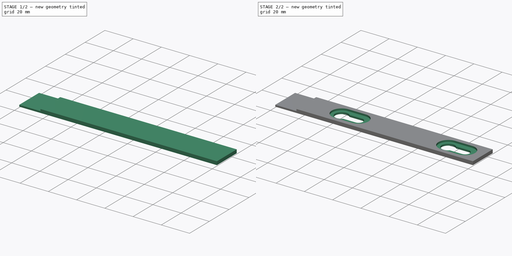
[diagram: build sequence overview — one tinted view per stage of 2, left to right]
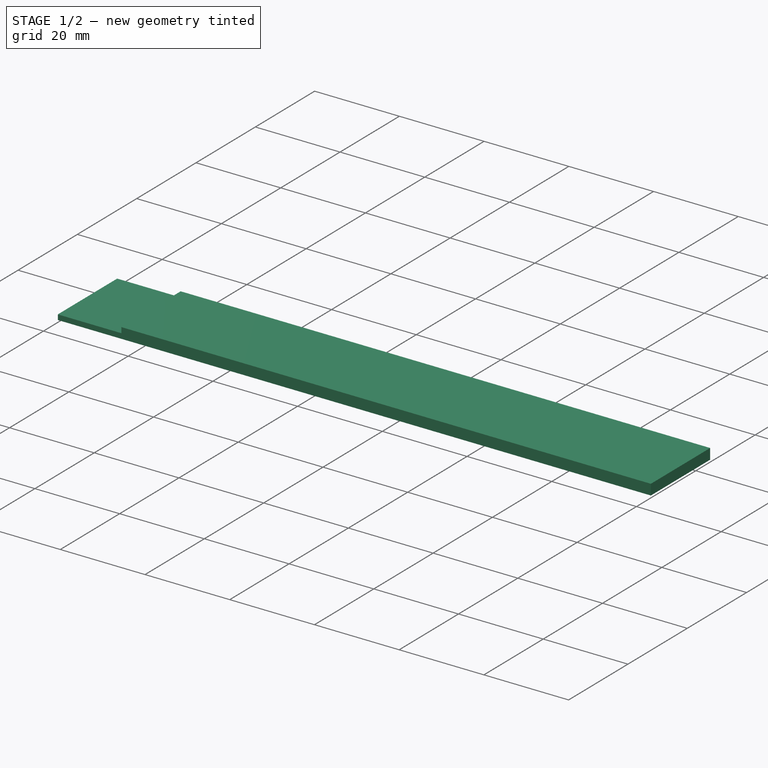
[diagram: stage 1 of 2 — iso view after this stage's code; geometry added in this stage tinted green]
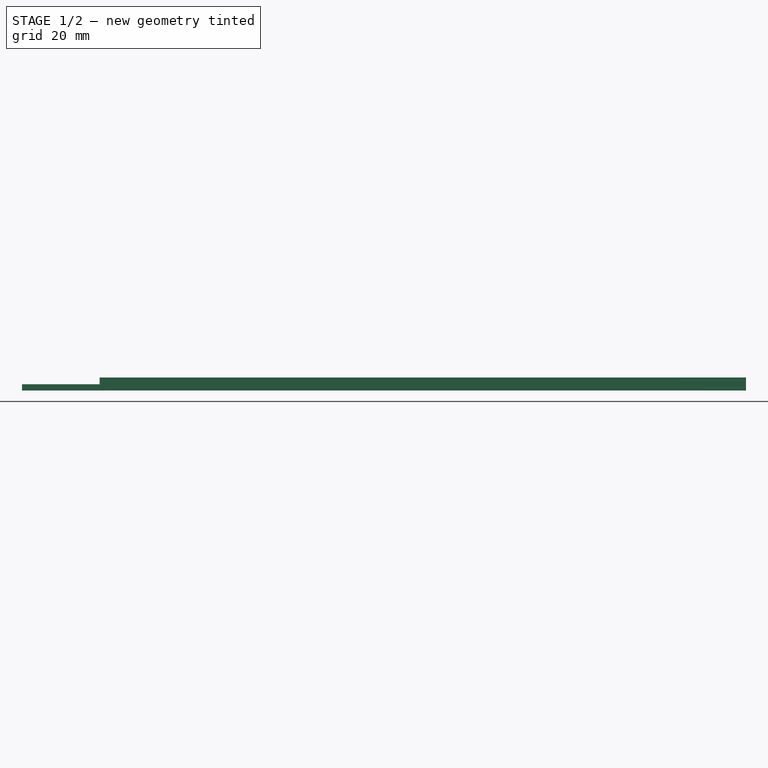
[diagram: stage 1 of 2 — front view after this stage's code; geometry added in this stage tinted green]
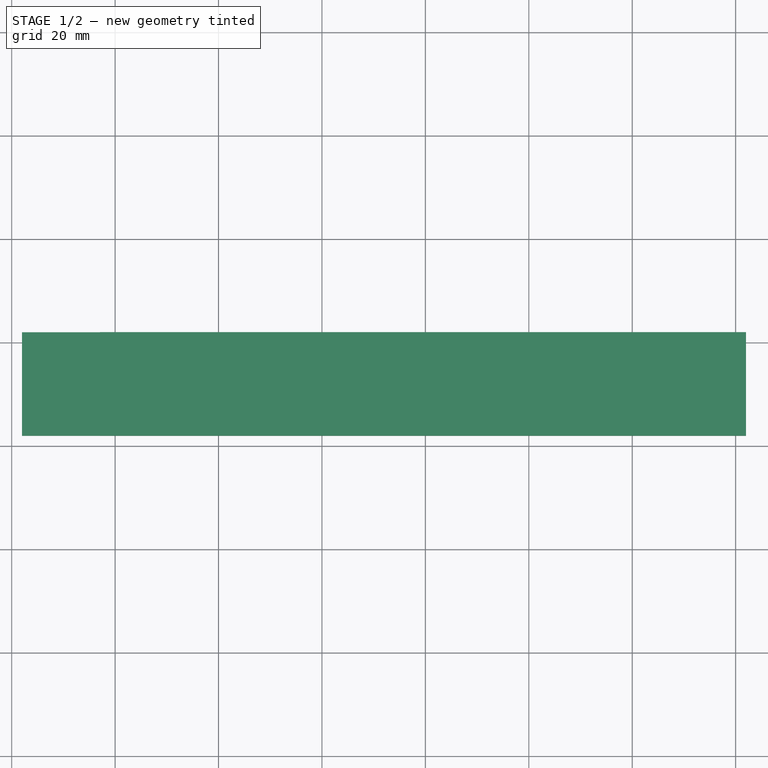
[diagram: stage 1 of 2 — top view after this stage's code; geometry added in this stage tinted green]
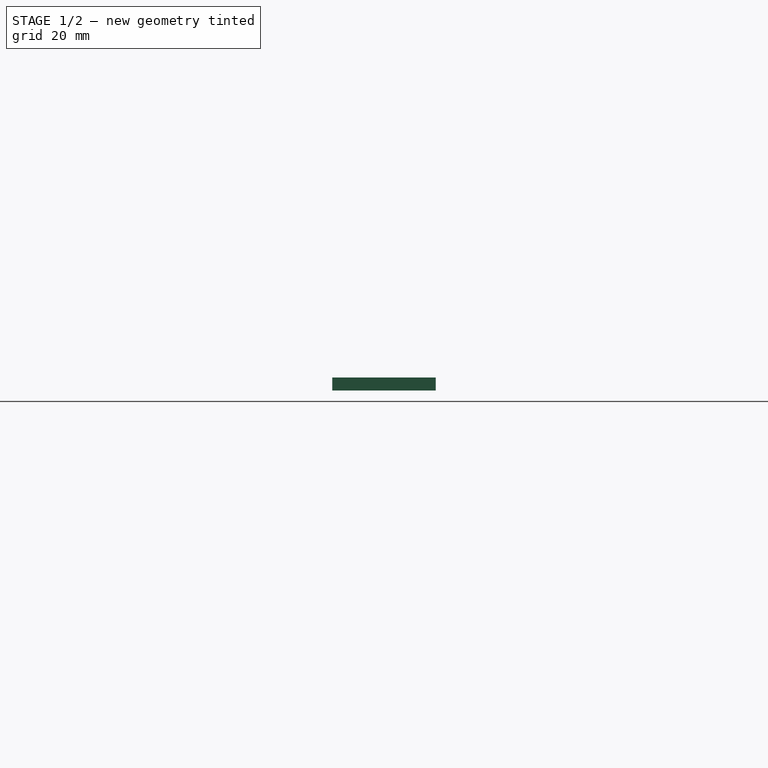
[diagram: stage 1 of 2 — right view after this stage's code; geometry added in this stage tinted green]
FCSTD DOCUMENT  (FreeCAD 0.15R4671 (Git))
Label: heaterBracketLow
License: CC-BY 3.0
LicenseURL: http://creativecommons.org/licenses/by/3.0/
objects: Sketcher::SketchObject×4, PartDesign::Pocket×3, PartDesign::Pad×1
note: 12 computed .brp shape members not serialized (recipe doc carries the construction recipe); baked Part::Feature solids carry a one-line shape summary decoded from their .brp

FEATURE [Sketcher::SketchObject] Sketch  label="Sketch Corps"
  sketch-geometry (4):
    g0: LineSegment StartX=2 StartY=2 StartZ=0 EndX=142 EndY=2 EndZ=0
    g1: LineSegment StartX=142 StartY=2 StartZ=0 EndX=142 EndY=22 EndZ=0
    g2: LineSegment StartX=142 StartY=22 StartZ=0 EndX=2 EndY=22 EndZ=0
    g3: LineSegment StartX=2 StartY=22 StartZ=0 EndX=2 EndY=2 EndZ=0
  constraints (12):
    c: Coincident(g0,g1)
    c: Coincident(g1,g2)
    c: Coincident(g2,g3)
    c: Coincident(g3,g0)
    c: Horizontal(g0)
    c: Horizontal(g2)
    c: Vertical(g1)
    c: Vertical(g3)
    c: DistanceY(g3) = -20
    c: DistanceX(g-1,g0) = 2
    c: DistanceY(g-1,g0) = 2
    c: DistanceX(g0,g0) = 140
FEATURE [PartDesign::Pad] Pad  label="Corps"
  Length = 2.5
  Length2 = 100
  Sketch = -> Sketch
  Type = 0
FEATURE [Sketcher::SketchObject] Sketch001  label="Sketch Jointure"
  Placement = pos=(0,0,2.5) rot=(0,0,1;0rad)
  Support = -> Pad [Face6]
  sketch-geometry (4):
    g0: LineSegment StartX=2 StartY=2 StartZ=0 EndX=17 EndY=2 EndZ=0
    g1: LineSegment StartX=17 StartY=2 StartZ=0 EndX=17 EndY=22 EndZ=0
    g2: LineSegment StartX=17 StartY=22 StartZ=0 EndX=2 EndY=22 EndZ=0
    g3: LineSegment StartX=2 StartY=22 StartZ=0 EndX=2 EndY=2 EndZ=0
  constraints (12):
    c: Coincident(g0,g1)
    c: Coincident(g1,g2)
    c: Coincident(g2,g3)
    c: Coincident(g3,g0)
    c: Horizontal(g0)
    c: Horizontal(g2)
    c: Vertical(g1)
    c: Vertical(g3)
    c: DistanceY(g-1,g0) = 2
    c: DistanceX(g-1,g0) = 2
    c: DistanceY(g0,g2) = 20
    c: Distance(g0) = 15
FEATURE [PartDesign::Pocket] Pocket  label="Pocket Jointure"
  Length = 1.3
  Sketch = -> Sketch001
  Type = 0
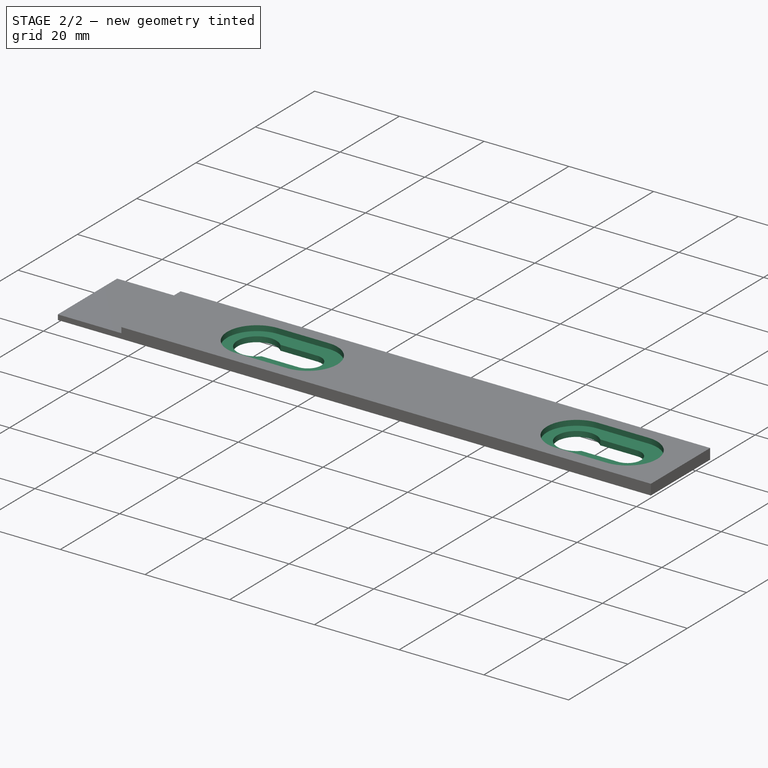
[diagram: stage 2 of 2 — iso view after this stage's code; geometry added in this stage tinted green]
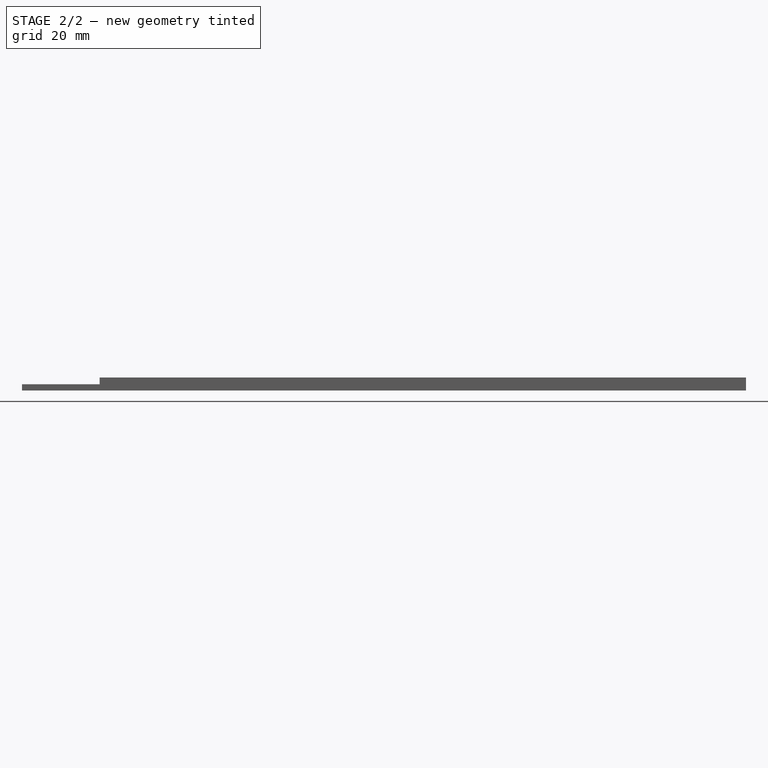
[diagram: stage 2 of 2 — front view after this stage's code; geometry added in this stage tinted green]
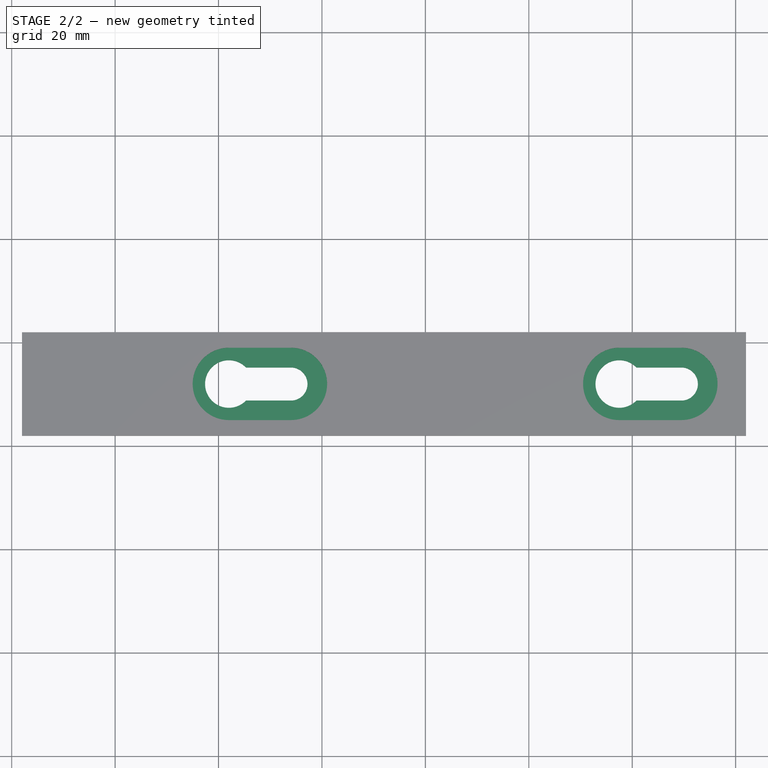
[diagram: stage 2 of 2 — top view after this stage's code; geometry added in this stage tinted green]
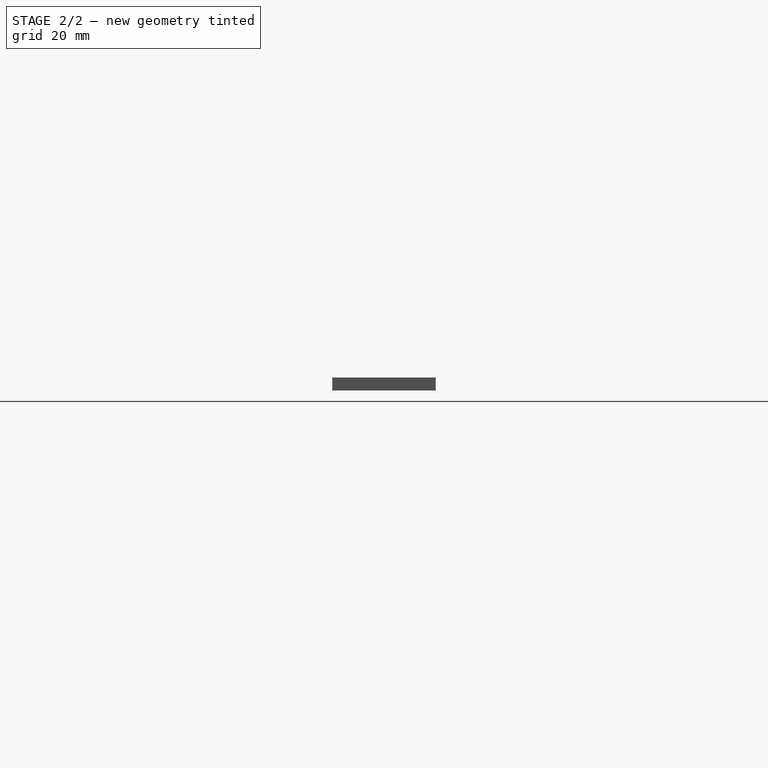
[diagram: stage 2 of 2 — right view after this stage's code; geometry added in this stage tinted green]
FEATURE [Sketcher::SketchObject] Sketch002  label="Sketch renfoncements"
  Placement = pos=(0,0,2.5) rot=(0,0,1;0rad)
  Support = -> Pocket [Face4]
  sketch-geometry (8):
    g0: ArcOfCircle CenterX=42 CenterY=12 CenterZ=0 NormalX=0 NormalY=0 NormalZ=1 Radius=7 StartAngle=1.5708 EndAngle=4.71239
    g1: ArcOfCircle CenterX=54 CenterY=12 CenterZ=0 NormalX=0 NormalY=0 NormalZ=1 Radius=7 StartAngle=4.71239 EndAngle=7.85398
    g2: LineSegment StartX=42 StartY=5 StartZ=0 EndX=54 EndY=5 EndZ=0
    g3: LineSegment StartX=42 StartY=19 StartZ=0 EndX=54 EndY=19 EndZ=0
    g4: ArcOfCircle CenterX=117.5 CenterY=12 CenterZ=0 NormalX=0 NormalY=0 NormalZ=1 Radius=7 StartAngle=1.5708 EndAngle=4.71239
    g5: ArcOfCircle CenterX=129.5 CenterY=12 CenterZ=0 NormalX=0 NormalY=0 NormalZ=1 Radius=7 StartAngle=4.71239 EndAngle=7.85398
    g6: LineSegment StartX=117.5 StartY=5 StartZ=0 EndX=129.5 EndY=5 EndZ=0
    g7: LineSegment StartX=117.5 StartY=19 StartZ=0 EndX=129.5 EndY=19 EndZ=0
  constraints (20):
    c: Tangent(g0,g3) = 1.5708
    c: Tangent(g0,g2) = -1.5708
    c: Tangent(g2,g1) = -1.5708
    c: Tangent(g3,g1) = 1.5708
    c: Horizontal(g2)
    c: Equal(g0,g1)
    c: DistanceY(g-1,g0) = 12
    c: DistanceX(g-1,g0) = 42
    c: Radius(g0) = 7
    c: Tangent(g4,g7) = 1.5708
    c: Tangent(g4,g6) = -1.5708
    c: Tangent(g6,g5) = -1.5708
    c: Tangent(g7,g5) = 1.5708
    c: Horizontal(g6)
    c: Equal(g4,g5)
    c: DistanceY(g0,g5) = 0
    c: Radius(g5) = 7
    c: DistanceX(g0,g4) = 75.5
    c: DistanceX(g0,g1) = 12
    c: DistanceX(g4,g5) = 12
FEATURE [PartDesign::Pocket] Pocket001  label="Pocket Renfoncement"
  Length = 1.25
  Sketch = -> Sketch002
  Type = 0
FEATURE [Sketcher::SketchObject] Sketch003  label="Sketch trous"
  Placement = pos=(0,0,1.25) rot=(0,0,1;0rad)
  Support = -> Pocket001 [Face18]
  sketch-geometry (10):
    g0: Circle CenterX=42 CenterY=12 CenterZ=0 NormalX=0 NormalY=0 NormalZ=1 Radius=4.6
    g1: ArcOfCircle CenterX=54 CenterY=12 CenterZ=0 NormalX=0 NormalY=0 NormalZ=1 Radius=3.2 StartAngle=4.71239 EndAngle=7.85398
    g2: ArcOfCircle CenterX=44 CenterY=12 CenterZ=0 NormalX=0 NormalY=0 NormalZ=1 Radius=3.2 StartAngle=1.5708 EndAngle=4.71239
    g3: LineSegment StartX=54 StartY=15.2 StartZ=0 EndX=44 EndY=15.2 EndZ=0
    g4: LineSegment StartX=54 StartY=8.8 StartZ=0 EndX=44 EndY=8.8 EndZ=0
    g5: Circle CenterX=117.5 CenterY=12 CenterZ=0 NormalX=0 NormalY=0 NormalZ=1 Radius=4.6
    g6: ArcOfCircle CenterX=129.5 CenterY=12 CenterZ=0 NormalX=0 NormalY=0 NormalZ=1 Radius=3.2 StartAngle=4.71239 EndAngle=7.85398
    g7: ArcOfCircle CenterX=119.5 CenterY=12 CenterZ=0 NormalX=0 NormalY=0 NormalZ=1 Radius=3.2 StartAngle=1.5708 EndAngle=4.71239
    g8: LineSegment StartX=129.5 StartY=15.2 StartZ=0 EndX=119.5 EndY=15.2 EndZ=0
    g9: LineSegment StartX=129.5 StartY=8.8 StartZ=0 EndX=119.5 EndY=8.8 EndZ=0
  constraints (26):
    c: Radius(g0) = 4.6
    c: DistanceX(g-1,g0) = 42
    c: Tangent(g1,g4) = 1.5708
    c: Tangent(g1,g3) = -1.5708
    c: Tangent(g3,g2) = -1.5708
    c: Tangent(g4,g2) = 1.5708
    c: Horizontal(g3)
    c: Equal(g1,g2)
    c: DistanceX(g2,g0) = -2
    c: DistanceY(g2,g0) = 0
    c: DistanceY(g-1,g0) = 12
    c: Radius(g1) = 3.2
    c: DistanceX(g2,g1) = 10
    c: DistanceY(g5,g0) = 0
    c: DistanceX(g0,g5) = 75.5
    c: Tangent(g6,g9) = 1.5708
    c: Tangent(g6,g8) = -1.5708
    c: Tangent(g8,g7) = -1.5708
    c: Tangent(g9,g7) = 1.5708
    c: Horizontal(g8)
    c: Equal(g6,g7)
    c: DistanceY(g7,g5) = 0
    c: Equal(g6,g1)
    c: Equal(g5,g0)
    c: DistanceX(g7,g5) = -2
    c: DistanceX(g7,g6) = 10
FEATURE [PartDesign::Pocket] Pocket002
  Length = 5
  Sketch = -> Sketch003
  Type = 1
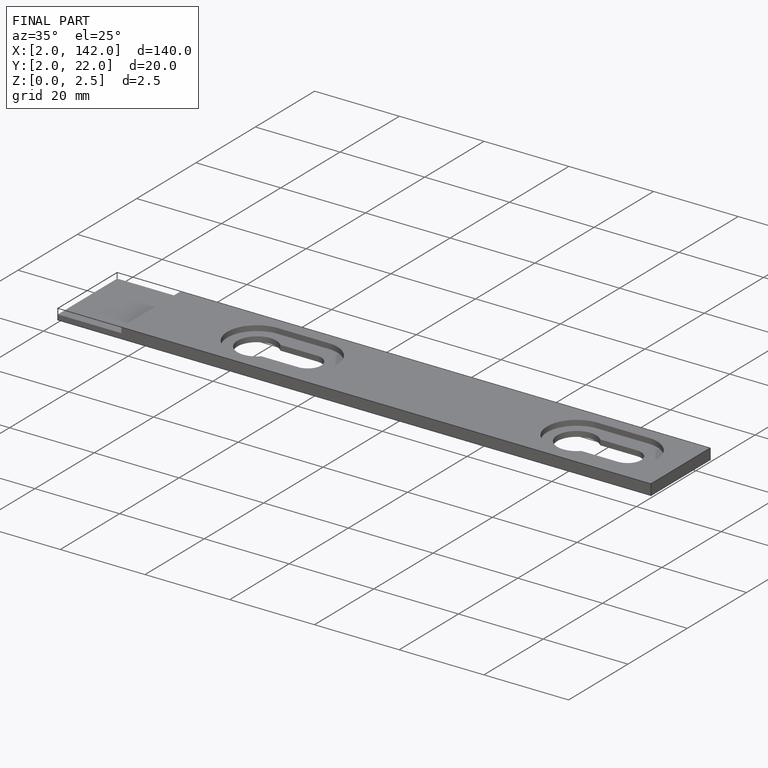
[diagram: finished part — iso view with bounding-box wireframe]
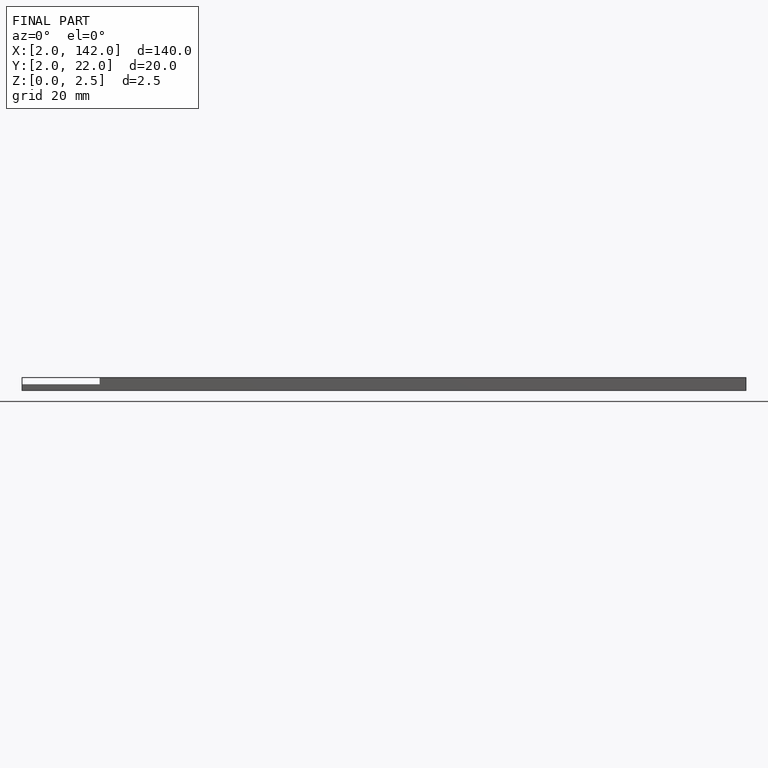
[diagram: finished part — front view with bounding-box wireframe]
